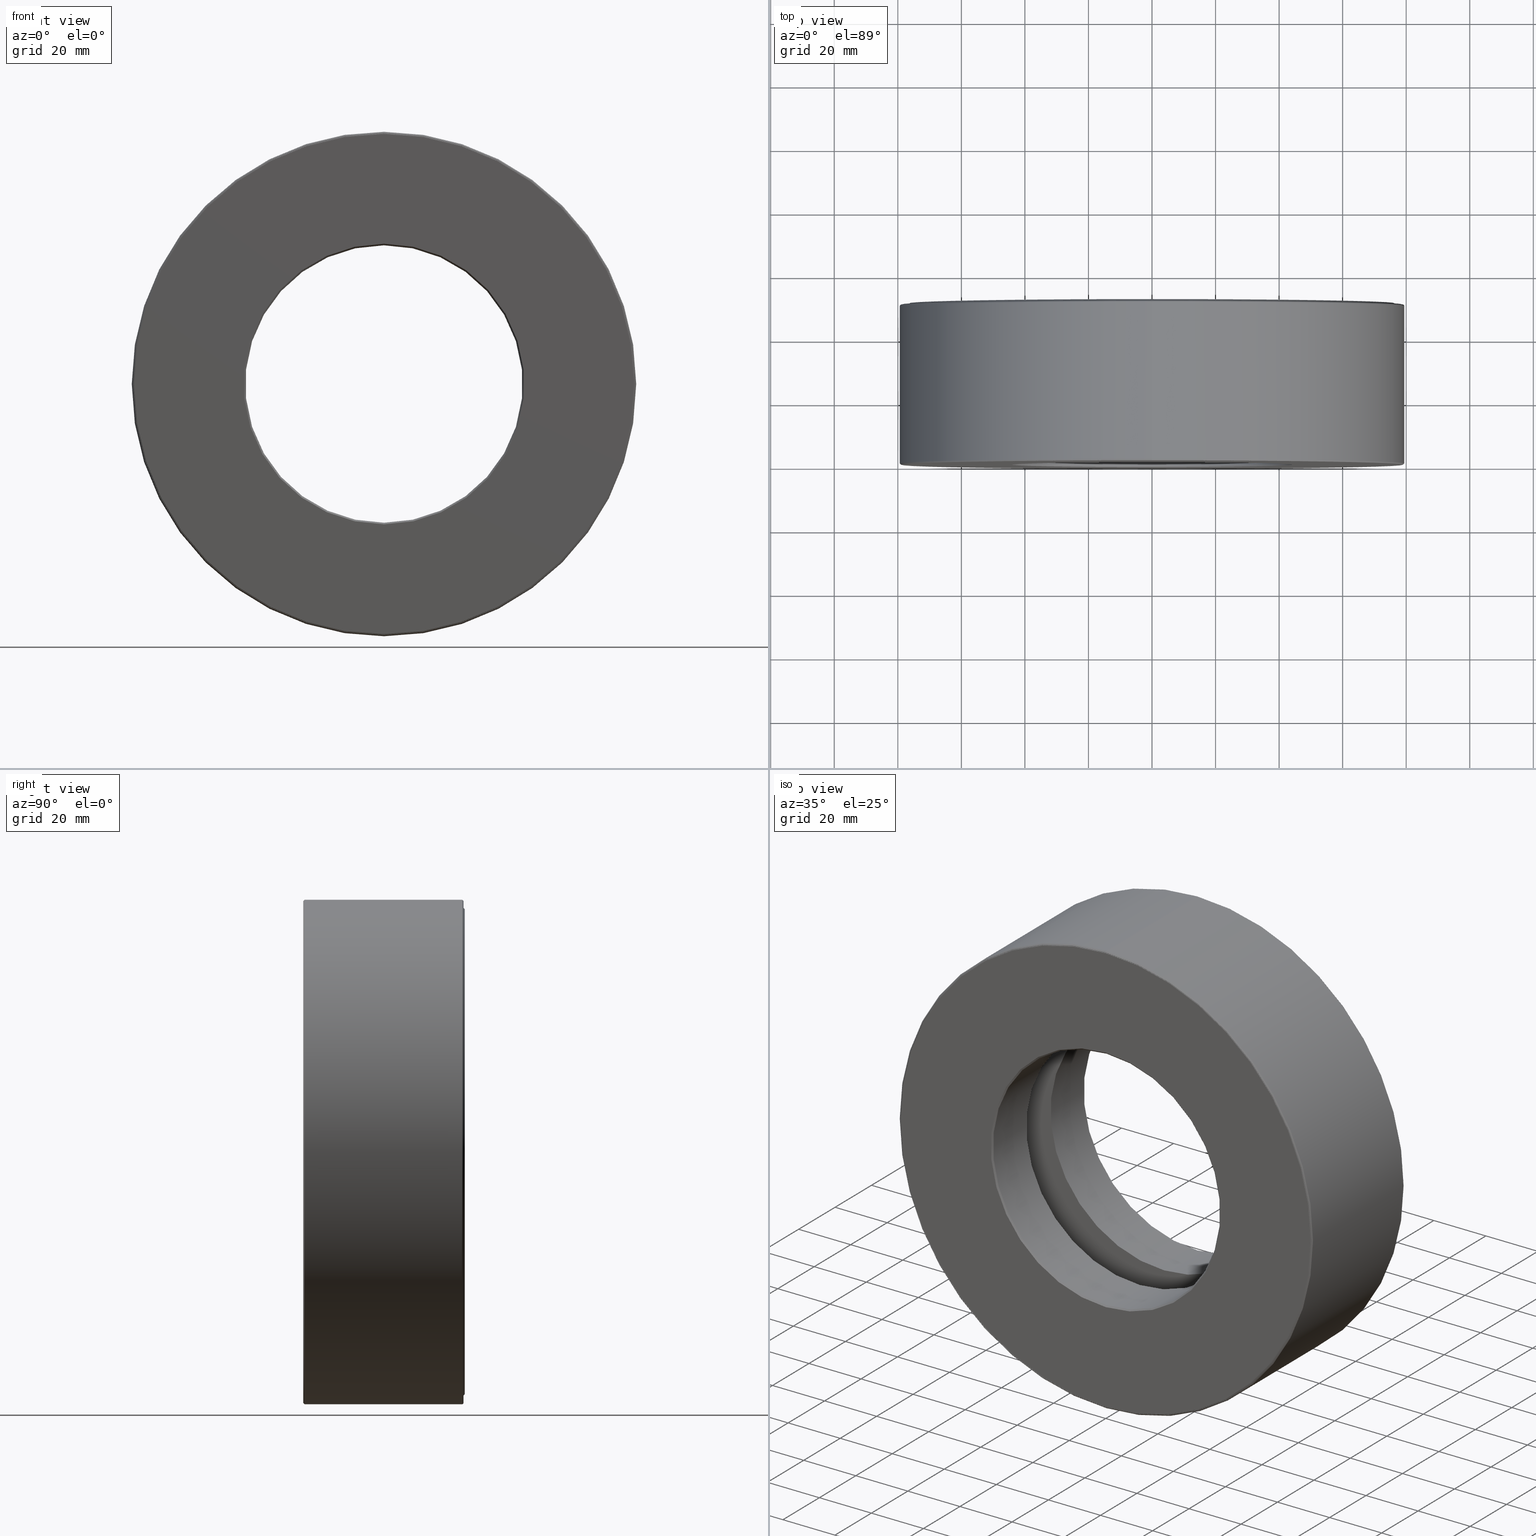
[diagram: canonical four-view strip — front | top / right | iso, engineering-drawing reading convention]
A machine part, canonical four-view strip (front | top / right | iso — engineering-drawing reading convention). The complete STEP part file that produces these views, byte-faithful:
ISO-10303-21;
HEADER;
FILE_DESCRIPTION (( 'STEP AP203' ),
    '1' );
FILE_NAME ('T-100-50.step',
    '2016-06-29T18:27:42',
    ( '' ),
    ( '' ),
    'SwSTEP 2.0',
    'SolidWorks 2016',
    '' );
FILE_SCHEMA (( 'CONFIG_CONTROL_DESIGN' ));
ENDSEC;

DATA;
#1 = CYLINDRICAL_SURFACE ( 'NONE', #120, 1.718750000000000400 ) ;
#2 = EDGE_LOOP ( 'NONE', ( #555 ) ) ;
#3 = CARTESIAN_POINT ( 'NONE',  ( 0.0000000000000000000, -2.433052119357234800E-016, 0.0000000000000000000 ) ) ;
#4 = ORIENTED_EDGE ( 'NONE', *, *, #123, .T. ) ;
#5 = DIRECTION ( 'NONE',  ( 0.0000000000000000000, -0.0000000000000000000, -1.000000000000000000 ) ) ;
#6 = DIRECTION ( 'NONE',  ( 0.0000000000000000000, 0.0000000000000000000, 1.000000000000000000 ) ) ;
#7 = ADVANCED_FACE ( 'NONE', ( #417, #169 ), #47, .F. ) ;
#8 = DIRECTION ( 'NONE',  ( 0.0000000000000000000, 0.0000000000000000000, 1.000000000000000000 ) ) ;
#9 = FACE_BOUND ( 'NONE', #160, .T. ) ;
#10 = AXIS2_PLACEMENT_3D ( 'NONE', #334, #478, #296 ) ;
#11 = ORIENTED_EDGE ( 'NONE', *, *, #471, .T. ) ;
#12 = COORDINATED_UNIVERSAL_TIME_OFFSET ( 5, 0, .BEHIND. ) ;
#13 = DIRECTION ( 'NONE',  ( -0.0000000000000000000, 1.000000000000000000, -0.0000000000000000000 ) ) ;
#14 = AXIS2_PLACEMENT_3D ( 'NONE', #451, #401, #165 ) ;
#15 = CIRCLE ( 'NONE', #35, 3.105000000000000900 ) ;
#16 = DIRECTION ( 'NONE',  ( -0.0000000000000000000, 1.000000000000000000, -0.0000000000000000000 ) ) ;
#17 = EDGE_LOOP ( 'NONE', ( #280 ) ) ;
#18 = ORIENTED_EDGE ( 'NONE', *, *, #423, .F. ) ;
#19 = COORDINATED_UNIVERSAL_TIME_OFFSET ( 5, 0, .BEHIND. ) ;
#20 = AXIS2_PLACEMENT_3D ( 'NONE', #86, #510, #230 ) ;
#21 = ADVANCED_FACE ( 'NONE', ( #279, #352 ), #223, .F. ) ;
#22 = DIRECTION ( 'NONE',  ( 0.0000000000000000000, 0.0000000000000000000, 1.000000000000000000 ) ) ;
#23 = CARTESIAN_POINT ( 'NONE',  ( 0.0000000000000000000, 1.262500000000000000, 3.008500000000000600 ) ) ;
#24 = ADVANCED_FACE ( 'NONE', ( #300, #329 ), #173, .F. ) ;
#25 = CARTESIAN_POINT ( 'NONE',  ( 0.0000000000000000000, 1.985000000000000300, 3.044999999999999900 ) ) ;
#26 = ADVANCED_FACE ( 'NONE', ( #218, #46 ), #94, .T. ) ;
#27 = FACE_OUTER_BOUND ( 'NONE', #227, .T. ) ;
#28 = ORIENTED_EDGE ( 'NONE', *, *, #600, .T. ) ;
#29 = CARTESIAN_POINT ( 'NONE',  ( 0.0000000000000000000, 1.979999999999999500, 1.718750000000000400 ) ) ;
#30 = APPROVAL_DATE_TIME ( #170, #156 ) ;
#31 = APPROVAL ( #178, 'UNSPECIFIED' ) ;
#32 = CARTESIAN_POINT ( 'NONE',  ( 0.0000000000000000000, 0.01499999999999997700, 3.125000000000000000 ) ) ;
#33 = ADVANCED_FACE ( 'NONE', ( #200, #259 ), #204, .F. ) ;
#34 = CARTESIAN_POINT ( 'NONE',  ( 0.0000000000000000000, 0.7374999999999999300, 3.105000000000000900 ) ) ;
#35 = AXIS2_PLACEMENT_3D ( 'NONE', #605, #283, #465 ) ;
#36 = CONICAL_SURFACE ( 'NONE', #44, 3.100000000000000100, 0.7853981633975455300 ) ;
#37 = ORIENTED_EDGE ( 'NONE', *, *, #535, .T. ) ;
#38 = EDGE_LOOP ( 'NONE', ( #98 ) ) ;
#39 = VERTEX_POINT ( 'NONE', #493 ) ;
#40 = DIRECTION ( 'NONE',  ( -0.0000000000000000000, 1.000000000000000000, -0.0000000000000000000 ) ) ;
#41 = ORIENTED_EDGE ( 'NONE', *, *, #207, .F. ) ;
#42 = DIRECTION ( 'NONE',  ( 1.000000000000000000, 0.0000000000000000000, 0.0000000000000000000 ) ) ;
#43 = VERTEX_POINT ( 'NONE', #586 ) ;
#44 = AXIS2_PLACEMENT_3D ( 'NONE', #332, #231, #239 ) ;
#45 = DIRECTION ( 'NONE',  ( -0.0000000000000000000, 1.000000000000000000, -0.0000000000000000000 ) ) ;
#46 = FACE_BOUND ( 'NONE', #476, .T. ) ;
#47 = PLANE ( 'NONE',  #214 ) ;
#48 = EDGE_LOOP ( 'NONE', ( #244 ) ) ;
#49 = DIRECTION ( 'NONE',  ( -0.0000000000000000000, 1.000000000000000000, -0.0000000000000000000 ) ) ;
#50 = FACE_OUTER_BOUND ( 'NONE', #107, .T. ) ;
#51 = DIRECTION ( 'NONE',  ( 0.0000000000000000000, -1.000000000000000000, 0.0000000000000000000 ) ) ;
#52 = DIRECTION ( 'NONE',  ( 0.0000000000000000000, 0.0000000000000000000, 1.000000000000000000 ) ) ;
#53 = EDGE_LOOP ( 'NONE', ( #441 ) ) ;
#54 = CARTESIAN_POINT ( 'NONE',  ( 0.0000000000000000000, 1.965000000000000500, 0.0000000000000000000 ) ) ;
#55 = ORIENTED_EDGE ( 'NONE', *, *, #241, .T. ) ;
#56 = CONICAL_SURFACE ( 'NONE', #80, 1.718750000000000400, 0.7853981633974415100 ) ;
#57 = CARTESIAN_POINT ( 'NONE',  ( 0.0000000000000000000, 2.000000000000000000, 0.0000000000000000000 ) ) ;
#58 = DIRECTION ( 'NONE',  ( -0.0000000000000000000, 1.000000000000000000, -0.0000000000000000000 ) ) ;
#59 = FACE_OUTER_BOUND ( 'NONE', #292, .T. ) ;
#60 = AXIS2_PLACEMENT_3D ( 'NONE', #236, #507, #184 ) ;
#61 = EDGE_LOOP ( 'NONE', ( #595 ) ) ;
#62 = PERSON ( 'UNSPECIFIED', 'UNSPECIFIED', 'UNSPECIFIED', ('UNSPECIFIED'), ('UNSPECIFIED'), ('UNSPECIFIED') ) ;
#63 = DIRECTION ( 'NONE',  ( 0.0000000000000000000, -1.000000000000000000, 0.0000000000000000000 ) ) ;
#64 = CARTESIAN_POINT ( 'NONE',  ( 0.0000000000000000000, 0.9999999999999998900, 0.0000000000000000000 ) ) ;
#65 = EDGE_CURVE ( 'NONE', #202, #202, #589, .T. ) ;
#66 = DIRECTION ( 'NONE',  ( 0.0000000000000000000, 0.0000000000000000000, 1.000000000000000000 ) ) ;
#67 = ORIENTED_EDGE ( 'NONE', *, *, #514, .F. ) ;
#68 = ORIENTED_EDGE ( 'NONE', *, *, #104, .F. ) ;
#69 = APPROVAL_DATE_TIME ( #84, #31 ) ;
#70 = DIRECTION ( 'NONE',  ( 0.0000000000000000000, 0.0000000000000000000, 1.000000000000000000 ) ) ;
#71 = DIRECTION ( 'NONE',  ( -0.0000000000000000000, 1.000000000000000000, 0.0000000000000000000 ) ) ;
#72 = CARTESIAN_POINT ( 'NONE',  ( 0.0000000000000000000, 2.000000000000000000, 0.0000000000000000000 ) ) ;
#73 = AXIS2_PLACEMENT_3D ( 'NONE', #150, #188, #569 ) ;
#74 = ADVANCED_FACE ( 'NONE', ( ), #457, .T. ) ;
#75 = CARTESIAN_POINT ( 'NONE',  ( 0.0000000000000000000, 1.965000000000000500, 3.125000000000000000 ) ) ;
#76 = CYLINDRICAL_SURFACE ( 'NONE', #92, 3.044999999999999900 ) ;
#77 = EDGE_LOOP ( 'NONE', ( #539 ) ) ;
#78 = VERTEX_POINT ( 'NONE', #405 ) ;
#79 = PERSON_AND_ORGANIZATION_ROLE ( 'design_owner' ) ;
#80 = AXIS2_PLACEMENT_3D ( 'NONE', #297, #255, #262 ) ;
#81 = SPHERICAL_SURFACE ( 'NONE', #20, 0.4374999999999998300 ) ;
#82 = EDGE_LOOP ( 'NONE', ( #41 ) ) ;
#83 = CLOSED_SHELL ( 'NONE', ( #171 ) ) ;
#84 = DATE_AND_TIME ( #565, #584 ) ;
#85 = AXIS2_PLACEMENT_3D ( 'NONE', #90, #372, #466 ) ;
#86 = CARTESIAN_POINT ( 'NONE',  ( -2.784630941794340900E-014, 0.9999999999999996700, -2.658500000000000100 ) ) ;
#87 = CARTESIAN_POINT ( 'NONE',  ( 0.0000000000000000000, 0.0000000000000000000, 0.0000000000000000000 ) ) ;
#88 = CIRCLE ( 'NONE', #85, 1.738750000000000500 ) ;
#89 = EDGE_LOOP ( 'NONE', ( #4 ) ) ;
#90 = CARTESIAN_POINT ( 'NONE',  ( 0.0000000000000000000, 2.000000000000000000, 0.0000000000000000000 ) ) ;
#91 = CIRCLE ( 'NONE', #469, 3.105000000000000900 ) ;
#92 = AXIS2_PLACEMENT_3D ( 'NONE', #556, #599, #138 ) ;
#93 = DIRECTION ( 'NONE',  ( -0.0000000000000000000, 1.000000000000000000, -0.0000000000000000000 ) ) ;
#94 = PLANE ( 'NONE',  #575 ) ;
#95 = DIRECTION ( 'NONE',  ( 6.982962677686264300E-015, -0.0000000000000000000, 1.000000000000000000 ) ) ;
#96 = CIRCLE ( 'NONE', #224, 3.008500000000000600 ) ;
#97 = EDGE_LOOP ( 'NONE', ( #177 ) ) ;
#98 = ORIENTED_EDGE ( 'NONE', *, *, #525, .T. ) ;
#99 = PERSON_AND_ORGANIZATION ( #62, #237 ) ;
#100 = CARTESIAN_POINT ( 'NONE',  ( 0.0000000000000000000, -2.433052119357234800E-016, 0.0000000000000000000 ) ) ;
#101 = CC_DESIGN_PERSON_AND_ORGANIZATION_ASSIGNMENT ( #566, #79, ( #577 ) ) ;
#102 = DIRECTION ( 'NONE',  ( 0.0000000000000000000, 0.0000000000000000000, 1.000000000000000000 ) ) ;
#103 = DIRECTION ( 'NONE',  ( 0.0000000000000000000, -1.000000000000000000, 0.0000000000000000000 ) ) ;
#104 = EDGE_CURVE ( 'NONE', #449, #449, #133, .T. ) ;
#105 = FACE_OUTER_BOUND ( 'NONE', #530, .T. ) ;
#106 = CARTESIAN_POINT ( 'NONE',  ( 0.0000000000000000000, 0.0000000000000000000, 0.0000000000000000000 ) ) ;
#107 = EDGE_LOOP ( 'NONE', ( #28 ) ) ;
#108 = PERSON_AND_ORGANIZATION ( #62, #237 ) ;
#109 = LOCAL_TIME ( 14, 27, 42.00000000000000000, #12 ) ;
#110 = DIRECTION ( 'NONE',  ( -0.0000000000000000000, 1.000000000000000000, -0.0000000000000000000 ) ) ;
#111 = CARTESIAN_POINT ( 'NONE',  ( 0.0000000000000000000, 1.985000000000000300, 0.0000000000000000000 ) ) ;
#112 = ADVANCED_FACE ( 'NONE', ( #529, #473 ), #336, .F. ) ;
#113 = CARTESIAN_POINT ( 'NONE',  ( 0.0000000000000000000, 1.262500000000000000, 0.0000000000000000000 ) ) ;
#114 = CIRCLE ( 'NONE', #285, 3.109999999999999900 ) ;
#115 = AXIS2_PLACEMENT_3D ( 'NONE', #312, #311, #70 ) ;
#116 = ORIENTED_EDGE ( 'NONE', *, *, #557, .F. ) ;
#117 = ORIENTED_EDGE ( 'NONE', *, *, #304, .F. ) ;
#118 = CARTESIAN_POINT ( 'NONE',  ( 0.0000000000000000000, 2.000000000000000000, 1.738750000000000500 ) ) ;
#119 = UNCERTAINTY_MEASURE_WITH_UNIT (LENGTH_MEASURE( 1.000000000000000100E-005 ), #408, 'distance_accuracy_value', 'NONE');
#120 = AXIS2_PLACEMENT_3D ( 'NONE', #87, #378, #424 ) ;
#121 = ADVANCED_FACE ( 'NONE', ( #409, #226 ), #36, .T. ) ;
#122 = PLANE ( 'NONE',  #14 ) ;
#123 = EDGE_CURVE ( 'NONE', #511, #511, #88, .T. ) ;
#124 = CARTESIAN_POINT ( 'NONE',  ( 0.0000000000000000000, 1.964999999999999900, 3.105000000000000400 ) ) ;
#125 = FACE_OUTER_BOUND ( 'NONE', #503, .T. ) ;
#126 = ORIENTED_EDGE ( 'NONE', *, *, #506, .T. ) ;
#127 =( GEOMETRIC_REPRESENTATION_CONTEXT ( 3 ) GLOBAL_UNCERTAINTY_ASSIGNED_CONTEXT ( ( #119 ) ) GLOBAL_UNIT_ASSIGNED_CONTEXT ( ( #408, #266, #269 ) ) REPRESENTATION_CONTEXT ( 'NONE', 'WORKASPACE' ) );
#128 = LENGTH_MEASURE_WITH_UNIT ( LENGTH_MEASURE( 0.02539999999999999900 ), #540 );
#129 = ADVANCED_FACE ( 'NONE', ( #284, #373 ), #1, .F. ) ;
#130 = CARTESIAN_POINT ( 'NONE',  ( 0.0000000000000000000, -2.438577071318078500E-016, 3.105000000000000900 ) ) ;
#131 = AXIS2_PLACEMENT_3D ( 'NONE', #327, #143, #102 ) ;
#132 = EDGE_CURVE ( 'NONE', #288, #288, #492, .T. ) ;
#133 = CIRCLE ( 'NONE', #278, 3.044999999999999900 ) ;
#134 = ORIENTED_EDGE ( 'NONE', *, *, #348, .F. ) ;
#135 = PERSON_AND_ORGANIZATION_ROLE ( 'design_supplier' ) ;
#136 = PERSON_AND_ORGANIZATION_ROLE ( 'creator' ) ;
#137 = DIRECTION ( 'NONE',  ( 0.0000000000000000000, 0.0000000000000000000, 1.000000000000000000 ) ) ;
#138 = DIRECTION ( 'NONE',  ( 0.0000000000000000000, 0.0000000000000000000, 1.000000000000000000 ) ) ;
#139 = FACE_OUTER_BOUND ( 'NONE', #235, .T. ) ;
#140 = ORIENTED_EDGE ( 'NONE', *, *, #275, .F. ) ;
#141 = APPROVAL_DATE_TIME ( #281, #306 ) ;
#142 = AXIS2_PLACEMENT_3D ( 'NONE', #242, #429, #560 ) ;
#143 = DIRECTION ( 'NONE',  ( -0.0000000000000000000, 1.000000000000000000, -0.0000000000000000000 ) ) ;
#144 = PLANE ( 'NONE',  #606 ) ;
#145 = CIRCLE ( 'NONE', #187, 1.738750000000000200 ) ;
#146 = CLOSED_SHELL ( 'NONE', ( #112, #452, #407, #153, #167, #580, #164, #537, #315, #33, #208, #121, #21, #270, #129, #7 ) ) ;
#147 = CARTESIAN_POINT ( 'NONE',  ( 0.0000000000000000000, 0.004999999999999412900, 0.0000000000000000000 ) ) ;
#148 = CARTESIAN_POINT ( 'NONE',  ( 0.0000000000000000000, 2.000000000000000000, 0.0000000000000000000 ) ) ;
#149 = AXIS2_PLACEMENT_3D ( 'NONE', #106, #197, #437 ) ;
#150 = CARTESIAN_POINT ( 'NONE',  ( 0.0000000000000000000, 0.0000000000000000000, 0.0000000000000000000 ) ) ;
#151 = PLANE ( 'NONE',  #320 ) ;
#152 = AXIS2_PLACEMENT_3D ( 'NONE', #291, #558, #249 ) ;
#153 = ADVANCED_FACE ( 'NONE', ( #252, #233 ), #144, .F. ) ;
#154 = EDGE_CURVE ( 'NONE', #574, #574, #15, .T. ) ;
#155 = ORIENTED_EDGE ( 'NONE', *, *, #65, .F. ) ;
#156 = APPROVAL ( #598, 'UNSPECIFIED' ) ;
#157 = CARTESIAN_POINT ( 'NONE',  ( 0.0000000000000000000, 0.7375000000000003800, 0.0000000000000000000 ) ) ;
#158 = CARTESIAN_POINT ( 'NONE',  ( -1.708128779421279200E-016, 0.7375000000000002700, 0.0000000000000000000 ) ) ;
#159 = SPHERICAL_SURFACE ( 'NONE', #464, 0.4374999999999998300 ) ;
#160 = EDGE_LOOP ( 'NONE', ( #447 ) ) ;
#161 = EDGE_LOOP ( 'NONE', ( #458 ) ) ;
#162 = FACE_OUTER_BOUND ( 'NONE', #82, .T. ) ;
#163 = CARTESIAN_POINT ( 'NONE',  ( 0.0000000000000000000, 1.912000000000000600, 0.0000000000000000000 ) ) ;
#164 = ADVANCED_FACE ( 'NONE', ( #105, #500 ), #209, .T. ) ;
#165 = DIRECTION ( 'NONE',  ( 0.0000000000000000000, -0.0000000000000000000, -1.000000000000000000 ) ) ;
#166 = CARTESIAN_POINT ( 'NONE',  ( 0.0000000000000000000, 1.964999999999999900, 3.044999999999999900 ) ) ;
#167 = ADVANCED_FACE ( 'NONE', ( #125, #570 ), #76, .F. ) ;
#168 = CC_DESIGN_SECURITY_CLASSIFICATION ( #182, ( #428 ) ) ;
#169 = FACE_OUTER_BOUND ( 'NONE', #38, .T. ) ;
#170 = DATE_AND_TIME ( #295, #109 ) ;
#171 = ADVANCED_FACE ( 'NONE', ( ), #159, .T. ) ;
#172 = AXIS2_PLACEMENT_3D ( 'NONE', #57, #51, #206 ) ;
#173 = CYLINDRICAL_SURFACE ( 'NONE', #491, 1.718750000000000400 ) ;
#174 = EDGE_LOOP ( 'NONE', ( #363 ) ) ;
#175 = VERTEX_POINT ( 'NONE', #25 ) ;
#176 = AXIS2_PLACEMENT_3D ( 'NONE', #416, #45, #553 ) ;
#177 = ORIENTED_EDGE ( 'NONE', *, *, #499, .T. ) ;
#178 = APPROVAL_STATUS ( 'not_yet_approved' ) ;
#179 = ORIENTED_EDGE ( 'NONE', *, *, #250, .F. ) ;
#180 = CARTESIAN_POINT ( 'NONE',  ( 9.282103139314469700E-015, 0.9999999999999996700, 2.658500000000000100 ) ) ;
#181 = APPROVAL_PERSON_ORGANIZATION ( #546, #156, #596 ) ;
#182 = SECURITY_CLASSIFICATION ( '', '', #414 ) ;
#183 = DIRECTION ( 'NONE',  ( 0.0000000000000000000, 0.0000000000000000000, 1.000000000000000000 ) ) ;
#184 = DIRECTION ( 'NONE',  ( 0.0000000000000000000, 0.0000000000000000000, 1.000000000000000000 ) ) ;
#185 = FACE_BOUND ( 'NONE', #97, .T. ) ;
#186 = EDGE_LOOP ( 'NONE', ( #509 ) ) ;
#187 = AXIS2_PLACEMENT_3D ( 'NONE', #579, #393, #399 ) ;
#188 = DIRECTION ( 'NONE',  ( -0.0000000000000000000, 1.000000000000000000, -0.0000000000000000000 ) ) ;
#189 = EDGE_LOOP ( 'NONE', ( #155 ) ) ;
#190 = CARTESIAN_POINT ( 'NONE',  ( 2.658500000000000100, 0.9999999999999996700, -1.856420627862893900E-014 ) ) ;
#191 = EDGE_LOOP ( 'NONE', ( #179 ) ) ;
#192 = LOCAL_TIME ( 14, 27, 42.00000000000000000, #19 ) ;
#193 = SHAPE_DEFINITION_REPRESENTATION ( #561, #582 ) ;
#194 = ADVANCED_FACE ( 'NONE', ( ), #81, .T. ) ;
#195 = CC_DESIGN_APPROVAL ( #31, ( #182 ) ) ;
#196 = CARTESIAN_POINT ( 'NONE',  ( 0.0000000000000000000, 0.0000000000000000000, 0.0000000000000000000 ) ) ;
#197 = DIRECTION ( 'NONE',  ( -0.0000000000000000000, 1.000000000000000000, -0.0000000000000000000 ) ) ;
#198 = AXIS2_PLACEMENT_3D ( 'NONE', #299, #63, #347 ) ;
#199 = DIRECTION ( 'NONE',  ( -0.0000000000000000000, 1.000000000000000000, -0.0000000000000000000 ) ) ;
#200 = FACE_OUTER_BOUND ( 'NONE', #323, .T. ) ;
#201 = EDGE_LOOP ( 'NONE', ( #11 ) ) ;
#202 = VERTEX_POINT ( 'NONE', #124 ) ;
#203 = DIRECTION ( 'NONE',  ( 0.0000000000000000000, 0.0000000000000000000, 1.000000000000000000 ) ) ;
#204 = PLANE ( 'NONE',  #481 ) ;
#205 = DESIGN_CONTEXT ( 'detailed design', #366, 'design' ) ;
#206 = DIRECTION ( 'NONE',  ( 0.0000000000000000000, 0.0000000000000000000, -1.000000000000000000 ) ) ;
#207 = EDGE_CURVE ( 'NONE', #590, #590, #389, .T. ) ;
#208 = ADVANCED_FACE ( 'NONE', ( #139, #601 ), #484, .F. ) ;
#209 = TOROIDAL_SURFACE ( 'NONE', #60, 3.105000000000000400, 0.01999999999999978500 ) ;
#210 = CARTESIAN_POINT ( 'NONE',  ( 0.0000000000000000000, 0.004999999999999412900, 3.105000000000000900 ) ) ;
#211 = EDGE_LOOP ( 'NONE', ( #486 ) ) ;
#212 = COORDINATED_UNIVERSAL_TIME_OFFSET ( 5, 0, .BEHIND. ) ;
#213 = MECHANICAL_CONTEXT ( 'NONE', #585, 'mechanical' ) ;
#214 = AXIS2_PLACEMENT_3D ( 'NONE', #158, #103, #532 ) ;
#215 = CARTESIAN_POINT ( 'NONE',  ( 0.0000000000000000000, 0.7374999999999999300, 3.008500000000000600 ) ) ;
#216 = DIRECTION ( 'NONE',  ( -0.0000000000000000000, 1.000000000000000000, -0.0000000000000000000 ) ) ;
#217 = CC_DESIGN_DATE_AND_TIME_ASSIGNMENT ( #229, #459, ( #182 ) ) ;
#218 = FACE_OUTER_BOUND ( 'NONE', #186, .T. ) ;
#219 = EDGE_LOOP ( 'NONE', ( #330 ) ) ;
#220 = DIRECTION ( 'NONE',  ( 0.0000000000000000000, 0.0000000000000000000, 1.000000000000000000 ) ) ;
#221 = CIRCLE ( 'NONE', #246, 3.009999999999999800 ) ;
#222 = MANIFOLD_SOLID_BREP ( 'Revolve2[1]', #146 ) ;
#223 = PLANE ( 'NONE',  #257 ) ;
#224 = AXIS2_PLACEMENT_3D ( 'NONE', #436, #93, #343 ) ;
#225 = APPLICATION_PROTOCOL_DEFINITION ( 'international standard', 'config_control_design', 1994, #366 ) ;
#226 = FACE_BOUND ( 'NONE', #386, .T. ) ;
#227 = EDGE_LOOP ( 'NONE', ( #260 ) ) ;
#228 = EDGE_LOOP ( 'NONE', ( #18 ) ) ;
#229 = DATE_AND_TIME ( #461, #293 ) ;
#230 = DIRECTION ( 'NONE',  ( 1.047444401652939700E-014, 0.0000000000000000000, 1.000000000000000000 ) ) ;
#231 = DIRECTION ( 'NONE',  ( -0.0000000000000000000, 1.000000000000000000, -0.0000000000000000000 ) ) ;
#232 = DIRECTION ( 'NONE',  ( 0.0000000000000000000, 0.0000000000000000000, 1.000000000000000000 ) ) ;
#233 = FACE_BOUND ( 'NONE', #519, .T. ) ;
#234 = AXIS2_PLACEMENT_3D ( 'NONE', #157, #110, #571 ) ;
#235 = EDGE_LOOP ( 'NONE', ( #518 ) ) ;
#236 = CARTESIAN_POINT ( 'NONE',  ( 0.0000000000000000000, 1.965000000000000500, 0.0000000000000000000 ) ) ;
#237 = ORGANIZATION ( 'UNSPECIFIED', 'UNSPECIFIED', '' ) ;
#238 = CARTESIAN_POINT ( 'NONE',  ( -6.487435601265028900E-032, -2.435814595337656400E-016, 0.0000000000000000000 ) ) ;
#239 = DIRECTION ( 'NONE',  ( 0.0000000000000000000, 0.0000000000000000000, 1.000000000000000000 ) ) ;
#240 = CARTESIAN_POINT ( 'NONE',  ( 0.0000000000000000000, 0.02000000000000060800, 0.0000000000000000000 ) ) ;
#241 = EDGE_CURVE ( 'NONE', #455, #455, #96, .T. ) ;
#242 = CARTESIAN_POINT ( 'NONE',  ( 0.0000000000000000000, 1.262500000000000000, 0.0000000000000000000 ) ) ;
#243 = FACE_BOUND ( 'NONE', #397, .T. ) ;
#244 = ORIENTED_EDGE ( 'NONE', *, *, #348, .T. ) ;
#245 = EDGE_LOOP ( 'NONE', ( #286 ) ) ;
#246 = AXIS2_PLACEMENT_3D ( 'NONE', #72, #360, #220 ) ;
#247 = FACE_BOUND ( 'NONE', #211, .T. ) ;
#248 = AXIS2_PLACEMENT_3D ( 'NONE', #180, #370, #375 ) ;
#249 = DIRECTION ( 'NONE',  ( 0.0000000000000000000, 0.0000000000000000000, 1.000000000000000000 ) ) ;
#250 = EDGE_CURVE ( 'NONE', #78, #78, #544, .T. ) ;
#251 = MANIFOLD_SOLID_BREP ( 'BALLS[3]', #563 ) ;
#252 = FACE_OUTER_BOUND ( 'NONE', #189, .T. ) ;
#253 = LOCAL_TIME ( 14, 27, 42.00000000000000000, #376 ) ;
#254 = PRODUCT_RELATED_PRODUCT_CATEGORY ( 'detail', '', ( #577 ) ) ;
#255 = DIRECTION ( 'NONE',  ( -0.0000000000000000000, 1.000000000000000000, -0.0000000000000000000 ) ) ;
#256 = DIRECTION ( 'NONE',  ( 0.0000000000000000000, 0.0000000000000000000, 1.000000000000000000 ) ) ;
#257 = AXIS2_PLACEMENT_3D ( 'NONE', #319, #71, #52 ) ;
#258 = DIRECTION ( 'NONE',  ( 0.0000000000000000000, 0.0000000000000000000, 1.000000000000000000 ) ) ;
#259 = FACE_BOUND ( 'NONE', #77, .T. ) ;
#260 = ORIENTED_EDGE ( 'NONE', *, *, #304, .T. ) ;
#261 = EDGE_LOOP ( 'NONE', ( #339 ) ) ;
#262 = DIRECTION ( 'NONE',  ( 0.0000000000000000000, 0.0000000000000000000, 1.000000000000000000 ) ) ;
#263 = CARTESIAN_POINT ( 'NONE',  ( 0.0000000000000000000, 0.7375000000000002700, 2.308499999999999600 ) ) ;
#264 = PRODUCT_DEFINITION ( 'UNKNOWN', '', #428, #205 ) ;
#265 = ADVANCED_FACE ( 'NONE', ( ), #554, .T. ) ;
#266 =( NAMED_UNIT ( * ) PLANE_ANGLE_UNIT ( ) SI_UNIT ( $, .RADIAN. ) );
#267 = FACE_OUTER_BOUND ( 'NONE', #219, .T. ) ;
#268 = FACE_OUTER_BOUND ( 'NONE', #274, .T. ) ;
#269 =( NAMED_UNIT ( * ) SI_UNIT ( $, .STERADIAN. ) SOLID_ANGLE_UNIT ( ) );
#270 = ADVANCED_FACE ( 'NONE', ( #439, #243 ), #344, .F. ) ;
#271 = AXIS2_PLACEMENT_3D ( 'NONE', #349, #16, #203 ) ;
#272 = CARTESIAN_POINT ( 'NONE',  ( 0.0000000000000000000, 0.0000000000000000000, 1.738750000000000200 ) ) ;
#273 = FACE_BOUND ( 'NONE', #564, .T. ) ;
#274 = EDGE_LOOP ( 'NONE', ( #432 ) ) ;
#275 = EDGE_CURVE ( 'NONE', #39, #39, #114, .T. ) ;
#276 = FACE_OUTER_BOUND ( 'NONE', #161, .T. ) ;
#277 = MANIFOLD_SOLID_BREP ( 'BALLS[2]', #355 ) ;
#278 = AXIS2_PLACEMENT_3D ( 'NONE', #420, #552, #505 ) ;
#279 = FACE_OUTER_BOUND ( 'NONE', #174, .T. ) ;
#280 = ORIENTED_EDGE ( 'NONE', *, *, #207, .T. ) ;
#281 = DATE_AND_TIME ( #603, #192 ) ;
#282 = VERTEX_POINT ( 'NONE', #32 ) ;
#283 = DIRECTION ( 'NONE',  ( -0.0000000000000000000, 1.000000000000000000, -0.0000000000000000000 ) ) ;
#284 = FACE_OUTER_BOUND ( 'NONE', #374, .T. ) ;
#285 = AXIS2_PLACEMENT_3D ( 'NONE', #100, #434, #287 ) ;
#286 = ORIENTED_EDGE ( 'NONE', *, *, #65, .T. ) ;
#287 = DIRECTION ( 'NONE',  ( 0.0000000000000000000, 0.0000000000000000000, 1.000000000000000000 ) ) ;
#288 = VERTEX_POINT ( 'NONE', #29 ) ;
#289 = CIRCLE ( 'NONE', #271, 3.008500000000000600 ) ;
#290 = DIRECTION ( 'NONE',  ( 0.0000000000000000000, -1.000000000000000000, 0.0000000000000000000 ) ) ;
#291 = CARTESIAN_POINT ( 'NONE',  ( 0.0000000000000000000, 1.262500000000000000, 0.0000000000000000000 ) ) ;
#292 = EDGE_LOOP ( 'NONE', ( #117 ) ) ;
#293 = LOCAL_TIME ( 14, 27, 42.00000000000000000, #212 ) ;
#294 = CC_DESIGN_PERSON_AND_ORGANIZATION_ASSIGNMENT ( #494, #136, ( #264 ) ) ;
#295 = CALENDAR_DATE ( 2016, 29, 6 ) ;
#296 = DIRECTION ( 'NONE',  ( 0.0000000000000000000, 0.0000000000000000000, 1.000000000000000000 ) ) ;
#297 = CARTESIAN_POINT ( 'NONE',  ( 0.0000000000000000000, 1.979999999999999500, 0.0000000000000000000 ) ) ;
#298 = AXIS2_PLACEMENT_3D ( 'NONE', #485, #58, #258 ) ;
#299 = CARTESIAN_POINT ( 'NONE',  ( 0.0000000000000000000, 0.7374999999999999300, 0.0000000000000000000 ) ) ;
#300 = FACE_OUTER_BOUND ( 'NONE', #53, .T. ) ;
#301 = EDGE_LOOP ( 'NONE', ( #474 ) ) ;
#302 = VERTEX_POINT ( 'NONE', #357 ) ;
#303 = PLANE ( 'NONE',  #198 ) ;
#304 = EDGE_CURVE ( 'NONE', #390, #390, #467, .T. ) ;
#305 = CARTESIAN_POINT ( 'NONE',  ( 0.0000000000000000000, -2.433052119357233400E-016, 0.0000000000000000000 ) ) ;
#306 = APPROVAL ( #415, 'UNSPECIFIED' ) ;
#307 = ADVANCED_FACE ( 'NONE', ( #27, #316 ), #508, .T. ) ;
#308 = APPLICATION_PROTOCOL_DEFINITION ( 'international standard', 'config_control_design', 1994, #585 ) ;
#309 = EDGE_LOOP ( 'NONE', ( #549 ) ) ;
#310 = EDGE_LOOP ( 'NONE', ( #454 ) ) ;
#311 = DIRECTION ( 'NONE',  ( -0.0000000000000000000, 1.000000000000000000, -0.0000000000000000000 ) ) ;
#312 = CARTESIAN_POINT ( 'NONE',  ( 0.0000000000000000000, 1.985000000000000300, 0.0000000000000000000 ) ) ;
#313 = AXIS2_PLACEMENT_3D ( 'NONE', #406, #66, #400 ) ;
#314 = CARTESIAN_POINT ( 'NONE',  ( 0.0000000000000000000, 0.01499999999999997700, 0.0000000000000000000 ) ) ;
#315 = ADVANCED_FACE ( 'NONE', ( #267, #9 ), #362, .T. ) ;
#316 = FACE_OUTER_BOUND ( 'NONE', #410, .T. ) ;
#317 = ORIENTED_EDGE ( 'NONE', *, *, #123, .F. ) ;
#318 = VERTEX_POINT ( 'NONE', #450 ) ;
#319 = CARTESIAN_POINT ( 'NONE',  ( -1.735438433665986200E-031, -1.216526059678617200E-016, 0.0000000000000000000 ) ) ;
#320 = AXIS2_PLACEMENT_3D ( 'NONE', #387, #475, #5 ) ;
#321 = PERSON_AND_ORGANIZATION_ROLE ( 'creator' ) ;
#322 = DATE_TIME_ROLE ( 'creation_date' ) ;
#323 = EDGE_LOOP ( 'NONE', ( #140 ) ) ;
#324 = COORDINATED_UNIVERSAL_TIME_OFFSET ( 5, 0, .BEHIND. ) ;
#325 = CIRCLE ( 'NONE', #328, 3.100000000000000100 ) ;
#326 = DIRECTION ( 'NONE',  ( 0.0000000000000000000, 0.0000000000000000000, -1.000000000000000000 ) ) ;
#327 = CARTESIAN_POINT ( 'NONE',  ( 0.0000000000000000000, 0.0000000000000000000, 0.0000000000000000000 ) ) ;
#328 = AXIS2_PLACEMENT_3D ( 'NONE', #305, #576, #353 ) ;
#329 = FACE_OUTER_BOUND ( 'NONE', #426, .T. ) ;
#330 = ORIENTED_EDGE ( 'NONE', *, *, #538, .F. ) ;
#331 = VERTEX_POINT ( 'NONE', #210 ) ;
#332 = CARTESIAN_POINT ( 'NONE',  ( 0.0000000000000000000, -2.433052119357233400E-016, 0.0000000000000000000 ) ) ;
#333 = CC_DESIGN_APPROVAL ( #156, ( #264 ) ) ;
#334 = CARTESIAN_POINT ( 'NONE',  ( 0.0000000000000000000, 1.262500000000000000, 0.0000000000000000000 ) ) ;
#335 = DIRECTION ( 'NONE',  ( -0.0000000000000000000, 1.000000000000000000, -0.0000000000000000000 ) ) ;
#336 = TOROIDAL_SURFACE ( 'NONE', #176, 2.658500000000000100, 0.4375000000000001700 ) ;
#337 = EDGE_LOOP ( 'NONE', ( #460 ) ) ;
#338 = DIRECTION ( 'NONE',  ( -0.0000000000000000000, 1.000000000000000000, -0.0000000000000000000 ) ) ;
#339 = ORIENTED_EDGE ( 'NONE', *, *, #525, .F. ) ;
#340 = DATE_AND_TIME ( #369, #253 ) ;
#341 = TOROIDAL_SURFACE ( 'NONE', #412, 2.658500000000000100, 0.4375000000000003900 ) ;
#342 = DIRECTION ( 'NONE',  ( 0.0000000000000000000, 0.0000000000000000000, 1.000000000000000000 ) ) ;
#343 = DIRECTION ( 'NONE',  ( 0.0000000000000000000, 0.0000000000000000000, 1.000000000000000000 ) ) ;
#344 = CONICAL_SURFACE ( 'NONE', #350, 1.718750000000000000, 0.7853981633974346200 ) ;
#345 = CC_DESIGN_DATE_AND_TIME_ASSIGNMENT ( #340, #322, ( #264 ) ) ;
#346 = FACE_BOUND ( 'NONE', #310, .T. ) ;
#347 = DIRECTION ( 'NONE',  ( 0.0000000000000000000, -0.0000000000000000000, -1.000000000000000000 ) ) ;
#348 = EDGE_CURVE ( 'NONE', #398, #398, #395, .T. ) ;
#349 = CARTESIAN_POINT ( 'NONE',  ( 0.0000000000000000000, 1.262500000000000000, 0.0000000000000000000 ) ) ;
#350 = AXIS2_PLACEMENT_3D ( 'NONE', #240, #290, #562 ) ;
#351 = DIRECTION ( 'NONE',  ( 0.0000000000000000000, -0.0000000000000000000, -1.000000000000000000 ) ) ;
#352 = FACE_BOUND ( 'NONE', #446, .T. ) ;
#353 = DIRECTION ( 'NONE',  ( 0.0000000000000000000, 0.0000000000000000000, 1.000000000000000000 ) ) ;
#354 = CLOSED_SHELL ( 'NONE', ( #361, #498, #483, #24, #531, #26, #445, #307 ) ) ;
#355 = CLOSED_SHELL ( 'NONE', ( #265 ) ) ;
#356 = PERSON_AND_ORGANIZATION ( #62, #237 ) ;
#357 = CARTESIAN_POINT ( 'NONE',  ( 0.0000000000000000000, -2.433052119357233400E-016, 3.100000000000000100 ) ) ;
#358 = DIRECTION ( 'NONE',  ( -0.0000000000000000000, 1.000000000000000000, -0.0000000000000000000 ) ) ;
#359 = CC_DESIGN_APPROVAL ( #306, ( #428 ) ) ;
#360 = DIRECTION ( 'NONE',  ( -0.0000000000000000000, 1.000000000000000000, -0.0000000000000000000 ) ) ;
#361 = ADVANCED_FACE ( 'NONE', ( #185, #59 ), #151, .T. ) ;
#362 = CONICAL_SURFACE ( 'NONE', #403, 3.109999999999999900, 0.7853981633974492800 ) ;
#363 = ORIENTED_EDGE ( 'NONE', *, *, #535, .F. ) ;
#364 = AXIS2_PLACEMENT_3D ( 'NONE', #515, #470, #232 ) ;
#365 = CIRCLE ( 'NONE', #234, 1.718750000000000400 ) ;
#366 = APPLICATION_CONTEXT ( 'configuration controlled 3d designs of mechanical parts and assemblies' ) ;
#367 = MANIFOLD_SOLID_BREP ( 'Revolve2[2]', #354 ) ;
#368 = EDGE_LOOP ( 'NONE', ( #597 ) ) ;
#369 = CALENDAR_DATE ( 2016, 29, 6 ) ;
#370 = DIRECTION ( 'NONE',  ( -1.000000000000000000, 0.0000000000000000000, 3.491481338843132200E-015 ) ) ;
#371 = AXIS2_PLACEMENT_3D ( 'NONE', #380, #40, #183 ) ;
#372 = DIRECTION ( 'NONE',  ( -0.0000000000000000000, 1.000000000000000000, -0.0000000000000000000 ) ) ;
#373 = FACE_OUTER_BOUND ( 'NONE', #201, .T. ) ;
#374 = EDGE_LOOP ( 'NONE', ( #67 ) ) ;
#375 = DIRECTION ( 'NONE',  ( -3.491481338843132200E-015, 0.0000000000000000000, -1.000000000000000000 ) ) ;
#376 = COORDINATED_UNIVERSAL_TIME_OFFSET ( 5, 0, .BEHIND. ) ;
#377 = CIRCLE ( 'NONE', #435, 1.718750000000000000 ) ;
#378 = DIRECTION ( 'NONE',  ( -0.0000000000000000000, 1.000000000000000000, -0.0000000000000000000 ) ) ;
#379 = EDGE_CURVE ( 'NONE', #331, #331, #479, .T. ) ;
#380 = CARTESIAN_POINT ( 'NONE',  ( 0.0000000000000000000, 1.964999999999999900, 0.0000000000000000000 ) ) ;
#381 = DIRECTION ( 'NONE',  ( 0.0000000000000000000, 0.0000000000000000000, 1.000000000000000000 ) ) ;
#382 = AXIS2_PLACEMENT_3D ( 'NONE', #147, #472, #521 ) ;
#383 = DIRECTION ( 'NONE',  ( -0.0000000000000000000, 1.000000000000000000, -0.0000000000000000000 ) ) ;
#384 = CYLINDRICAL_SURFACE ( 'NONE', #73, 3.105000000000000900 ) ;
#385 = ORIENTED_EDGE ( 'NONE', *, *, #600, .F. ) ;
#386 = EDGE_LOOP ( 'NONE', ( #37 ) ) ;
#387 = CARTESIAN_POINT ( 'NONE',  ( 0.0000000000000000000, 1.262500000000000000, 0.0000000000000000000 ) ) ;
#388 = CIRCLE ( 'NONE', #593, 3.044999999999999900 ) ;
#389 = CIRCLE ( 'NONE', #588, 3.125000000000000000 ) ;
#390 = VERTEX_POINT ( 'NONE', #490 ) ;
#391 = AXIS2_PLACEMENT_3D ( 'NONE', #314, #216, #488 ) ;
#392 = FACE_OUTER_BOUND ( 'NONE', #191, .T. ) ;
#393 = DIRECTION ( 'NONE',  ( -0.0000000000000000000, 1.000000000000000000, -0.0000000000000000000 ) ) ;
#394 = DIRECTION ( 'NONE',  ( 0.0000000000000000000, -1.000000000000000000, 0.0000000000000000000 ) ) ;
#395 = CIRCLE ( 'NONE', #152, 1.718750000000000400 ) ;
#396 = ORIENTED_EDGE ( 'NONE', *, *, #591, .F. ) ;
#397 = EDGE_LOOP ( 'NONE', ( #402 ) ) ;
#398 = VERTEX_POINT ( 'NONE', #543 ) ;
#399 = DIRECTION ( 'NONE',  ( 0.0000000000000000000, 0.0000000000000000000, 1.000000000000000000 ) ) ;
#400 = DIRECTION ( 'NONE',  ( 1.000000000000000000, 0.0000000000000000000, 0.0000000000000000000 ) ) ;
#401 = DIRECTION ( 'NONE',  ( 0.0000000000000000000, -1.000000000000000000, 0.0000000000000000000 ) ) ;
#402 = ORIENTED_EDGE ( 'NONE', *, *, #514, .T. ) ;
#403 = AXIS2_PLACEMENT_3D ( 'NONE', #3, #335, #342 ) ;
#404 = CIRCLE ( 'NONE', #115, 3.105000000000000400 ) ;
#405 = CARTESIAN_POINT ( 'NONE',  ( 0.0000000000000000000, 1.262500000000000000, 2.308499999999999600 ) ) ;
#406 = CARTESIAN_POINT ( 'NONE',  ( 0.0000000000000000000, 0.0000000000000000000, 0.0000000000000000000 ) ) ;
#407 = ADVANCED_FACE ( 'NONE', ( #453, #425 ), #384, .F. ) ;
#408 =( CONVERSION_BASED_UNIT ( 'INCH', #128 ) LENGTH_UNIT ( ) NAMED_UNIT ( #567 ) );
#409 = FACE_OUTER_BOUND ( 'NONE', #61, .T. ) ;
#410 = EDGE_LOOP ( 'NONE', ( #572 ) ) ;
#411 = CYLINDRICAL_SURFACE ( 'NONE', #149, 3.125000000000000000 ) ;
#412 = AXIS2_PLACEMENT_3D ( 'NONE', #64, #444, #440 ) ;
#413 = CONICAL_SURFACE ( 'NONE', #172, 3.009999999999999800, 0.7853981633974529400 ) ;
#414 = SECURITY_CLASSIFICATION_LEVEL ( 'unclassified' ) ;
#415 = APPROVAL_STATUS ( 'not_yet_approved' ) ;
#416 = CARTESIAN_POINT ( 'NONE',  ( 0.0000000000000000000, 0.9999999999999998900, 0.0000000000000000000 ) ) ;
#417 = FACE_BOUND ( 'NONE', #368, .T. ) ;
#418 = ORIENTED_EDGE ( 'NONE', *, *, #104, .T. ) ;
#419 = APPROVAL_PERSON_ORGANIZATION ( #573, #306, #547 ) ;
#420 = CARTESIAN_POINT ( 'NONE',  ( 0.0000000000000000000, 1.964999999999999900, 0.0000000000000000000 ) ) ;
#421 = DIRECTION ( 'NONE',  ( -0.0000000000000000000, 1.000000000000000000, 0.0000000000000000000 ) ) ;
#422 = MANIFOLD_SOLID_BREP ( 'BALLS[1]', #583 ) ;
#423 = EDGE_CURVE ( 'NONE', #520, #520, #145, .T. ) ;
#424 = DIRECTION ( 'NONE',  ( 0.0000000000000000000, 0.0000000000000000000, 1.000000000000000000 ) ) ;
#425 = FACE_OUTER_BOUND ( 'NONE', #245, .T. ) ;
#426 = EDGE_LOOP ( 'NONE', ( #134 ) ) ;
#427 = VERTEX_POINT ( 'NONE', #587 ) ;
#428 = PRODUCT_DEFINITION_FORMATION_WITH_SPECIFIED_SOURCE ( 'ANY', '', #577, .NOT_KNOWN. ) ;
#429 = DIRECTION ( 'NONE',  ( -0.0000000000000000000, 1.000000000000000000, -0.0000000000000000000 ) ) ;
#430 = DIRECTION ( 'NONE',  ( 0.0000000000000000000, 0.0000000000000000000, 1.000000000000000000 ) ) ;
#431 = EDGE_LOOP ( 'NONE', ( #55 ) ) ;
#432 = ORIENTED_EDGE ( 'NONE', *, *, #557, .T. ) ;
#433 = CIRCLE ( 'NONE', #391, 3.125000000000000000 ) ;
#434 = DIRECTION ( 'NONE',  ( -0.0000000000000000000, 1.000000000000000000, -0.0000000000000000000 ) ) ;
#435 = AXIS2_PLACEMENT_3D ( 'NONE', #526, #13, #256 ) ;
#436 = CARTESIAN_POINT ( 'NONE',  ( 0.0000000000000000000, 0.7374999999999999300, 0.0000000000000000000 ) ) ;
#437 = DIRECTION ( 'NONE',  ( 0.0000000000000000000, 0.0000000000000000000, 1.000000000000000000 ) ) ;
#438 = DIRECTION ( 'NONE',  ( -0.0000000000000000000, 1.000000000000000000, 0.0000000000000000000 ) ) ;
#439 = FACE_OUTER_BOUND ( 'NONE', #228, .T. ) ;
#440 = DIRECTION ( 'NONE',  ( 0.0000000000000000000, 0.0000000000000000000, 1.000000000000000000 ) ) ;
#441 = ORIENTED_EDGE ( 'NONE', *, *, #132, .T. ) ;
#442 = VERTEX_POINT ( 'NONE', #536 ) ;
#443 = AXIS2_PLACEMENT_3D ( 'NONE', #190, #95, #516 ) ;
#444 = DIRECTION ( 'NONE',  ( -0.0000000000000000000, 1.000000000000000000, -0.0000000000000000000 ) ) ;
#445 = ADVANCED_FACE ( 'NONE', ( #517, #273 ), #413, .T. ) ;
#446 = EDGE_LOOP ( 'NONE', ( #523 ) ) ;
#447 = ORIENTED_EDGE ( 'NONE', *, *, #275, .T. ) ;
#448 = CARTESIAN_POINT ( 'NONE',  ( 0.0000000000000000000, 0.02000000000000060800, 1.718750000000000000 ) ) ;
#449 = VERTEX_POINT ( 'NONE', #166 ) ;
#450 = CARTESIAN_POINT ( 'NONE',  ( 0.0000000000000000000, 1.912000000000000600, 3.098000000000000300 ) ) ;
#451 = CARTESIAN_POINT ( 'NONE',  ( 0.0000000000000000000, 1.985000000000000300, 0.0000000000000000000 ) ) ;
#452 = ADVANCED_FACE ( 'NONE', ( #247, #50 ), #303, .F. ) ;
#453 = FACE_OUTER_BOUND ( 'NONE', #545, .T. ) ;
#454 = ORIENTED_EDGE ( 'NONE', *, *, #528, .F. ) ;
#455 = VERTEX_POINT ( 'NONE', #215 ) ;
#456 = CIRCLE ( 'NONE', #559, 3.098000000000000300 ) ;
#457 = SPHERICAL_SURFACE ( 'NONE', #248, 0.4374999999999998300 ) ;
#458 = ORIENTED_EDGE ( 'NONE', *, *, #538, .T. ) ;
#459 = DATE_TIME_ROLE ( 'classification_date' ) ;
#460 = ORIENTED_EDGE ( 'NONE', *, *, #499, .F. ) ;
#461 = CALENDAR_DATE ( 2016, 29, 6 ) ;
#462 = PERSON_AND_ORGANIZATION_ROLE ( 'classification_officer' ) ;
#463 = CARTESIAN_POINT ( 'NONE',  ( -2.658500000000000100, 0.9999999999999996700, 0.0000000000000000000 ) ) ;
#464 = AXIS2_PLACEMENT_3D ( 'NONE', #463, #326, #42 ) ;
#465 = DIRECTION ( 'NONE',  ( 0.0000000000000000000, 0.0000000000000000000, 1.000000000000000000 ) ) ;
#466 = DIRECTION ( 'NONE',  ( 0.0000000000000000000, 0.0000000000000000000, 1.000000000000000000 ) ) ;
#467 = CIRCLE ( 'NONE', #10, 3.098000000000000300 ) ;
#468 = EDGE_LOOP ( 'NONE', ( #502 ) ) ;
#469 = AXIS2_PLACEMENT_3D ( 'NONE', #542, #358, #496 ) ;
#470 = DIRECTION ( 'NONE',  ( -0.0000000000000000000, 1.000000000000000000, -0.0000000000000000000 ) ) ;
#471 = EDGE_CURVE ( 'NONE', #43, #43, #365, .T. ) ;
#472 = DIRECTION ( 'NONE',  ( -0.0000000000000000000, 1.000000000000000000, -0.0000000000000000000 ) ) ;
#473 = FACE_OUTER_BOUND ( 'NONE', #431, .T. ) ;
#474 = ORIENTED_EDGE ( 'NONE', *, *, #132, .F. ) ;
#475 = DIRECTION ( 'NONE',  ( 0.0000000000000000000, -1.000000000000000000, 0.0000000000000000000 ) ) ;
#476 = EDGE_LOOP ( 'NONE', ( #317 ) ) ;
#477 = PERSON_AND_ORGANIZATION ( #62, #237 ) ;
#478 = DIRECTION ( 'NONE',  ( -0.0000000000000000000, 1.000000000000000000, -0.0000000000000000000 ) ) ;
#479 = CIRCLE ( 'NONE', #382, 3.105000000000000900 ) ;
#480 = VERTEX_POINT ( 'NONE', #263 ) ;
#481 = AXIS2_PLACEMENT_3D ( 'NONE', #238, #421, #6 ) ;
#482 = DIRECTION ( 'NONE',  ( -0.0000000000000000000, 1.000000000000000000, -0.0000000000000000000 ) ) ;
#483 = ADVANCED_FACE ( 'NONE', ( #541, #392 ), #527, .T. ) ;
#484 = CYLINDRICAL_SURFACE ( 'NONE', #131, 3.105000000000000900 ) ;
#485 = CARTESIAN_POINT ( 'NONE',  ( 0.0000000000000000000, 0.7375000000000002700, 0.0000000000000000000 ) ) ;
#486 = ORIENTED_EDGE ( 'NONE', *, *, #241, .F. ) ;
#487 = MANIFOLD_SOLID_BREP ( 'Revolve3', #83 ) ;
#488 = DIRECTION ( 'NONE',  ( 0.0000000000000000000, 0.0000000000000000000, 1.000000000000000000 ) ) ;
#489 = CC_DESIGN_PERSON_AND_ORGANIZATION_ASSIGNMENT ( #477, #462, ( #182 ) ) ;
#490 = CARTESIAN_POINT ( 'NONE',  ( 0.0000000000000000000, 1.262500000000000000, 3.098000000000000300 ) ) ;
#491 = AXIS2_PLACEMENT_3D ( 'NONE', #568, #49, #381 ) ;
#492 = CIRCLE ( 'NONE', #364, 1.718750000000000400 ) ;
#493 = CARTESIAN_POINT ( 'NONE',  ( 0.0000000000000000000, -2.433052119357234800E-016, 3.109999999999999900 ) ) ;
#494 = PERSON_AND_ORGANIZATION ( #62, #237 ) ;
#495 = FACE_OUTER_BOUND ( 'NONE', #337, .T. ) ;
#496 = DIRECTION ( 'NONE',  ( 0.0000000000000000000, 0.0000000000000000000, 1.000000000000000000 ) ) ;
#497 = CC_DESIGN_PERSON_AND_ORGANIZATION_ASSIGNMENT ( #108, #321, ( #428 ) ) ;
#498 = ADVANCED_FACE ( 'NONE', ( #522, #495 ), #341, .F. ) ;
#499 = EDGE_CURVE ( 'NONE', #604, #604, #289, .T. ) ;
#500 = FACE_OUTER_BOUND ( 'NONE', #17, .T. ) ;
#501 = AXIS2_PLACEMENT_3D ( 'NONE', #196, #338, #8 ) ;
#502 = ORIENTED_EDGE ( 'NONE', *, *, #250, .T. ) ;
#503 = EDGE_LOOP ( 'NONE', ( #68 ) ) ;
#504 = APPROVAL_PERSON_ORGANIZATION ( #99, #31, #592 ) ;
#505 = DIRECTION ( 'NONE',  ( 0.0000000000000000000, 0.0000000000000000000, 1.000000000000000000 ) ) ;
#506 = EDGE_CURVE ( 'NONE', #318, #318, #456, .T. ) ;
#507 = DIRECTION ( 'NONE',  ( -0.0000000000000000000, 1.000000000000000000, -0.0000000000000000000 ) ) ;
#508 = CYLINDRICAL_SURFACE ( 'NONE', #501, 3.098000000000000300 ) ;
#509 = ORIENTED_EDGE ( 'NONE', *, *, #591, .T. ) ;
#510 = DIRECTION ( 'NONE',  ( 1.000000000000000000, 0.0000000000000000000, -1.047444401652939500E-014 ) ) ;
#511 = VERTEX_POINT ( 'NONE', #118 ) ;
#512 = CARTESIAN_POINT ( 'NONE',  ( 0.0000000000000000000, 1.964999999999999900, 0.0000000000000000000 ) ) ;
#513 = DIRECTION ( 'NONE',  ( 0.0000000000000000000, 0.0000000000000000000, 1.000000000000000000 ) ) ;
#514 = EDGE_CURVE ( 'NONE', #524, #524, #377, .T. ) ;
#515 = CARTESIAN_POINT ( 'NONE',  ( 0.0000000000000000000, 1.979999999999999500, 0.0000000000000000000 ) ) ;
#516 = DIRECTION ( 'NONE',  ( -1.000000000000000000, 0.0000000000000000000, 6.982962677686264300E-015 ) ) ;
#517 = FACE_OUTER_BOUND ( 'NONE', #602, .T. ) ;
#518 = ORIENTED_EDGE ( 'NONE', *, *, #154, .F. ) ;
#519 = EDGE_LOOP ( 'NONE', ( #418 ) ) ;
#520 = VERTEX_POINT ( 'NONE', #272 ) ;
#521 = DIRECTION ( 'NONE',  ( 0.0000000000000000000, 0.0000000000000000000, 1.000000000000000000 ) ) ;
#522 = FACE_OUTER_BOUND ( 'NONE', #468, .T. ) ;
#523 = ORIENTED_EDGE ( 'NONE', *, *, #423, .T. ) ;
#524 = VERTEX_POINT ( 'NONE', #448 ) ;
#525 = EDGE_CURVE ( 'NONE', #480, #480, #581, .T. ) ;
#526 = CARTESIAN_POINT ( 'NONE',  ( 0.0000000000000000000, 0.02000000000000060800, 0.0000000000000000000 ) ) ;
#527 = PLANE ( 'NONE',  #534 ) ;
#528 = EDGE_CURVE ( 'NONE', #175, #175, #388, .T. ) ;
#529 = FACE_OUTER_BOUND ( 'NONE', #261, .T. ) ;
#530 = EDGE_LOOP ( 'NONE', ( #116 ) ) ;
#531 = ADVANCED_FACE ( 'NONE', ( #594, #533 ), #56, .F. ) ;
#532 = DIRECTION ( 'NONE',  ( 0.0000000000000000000, -0.0000000000000000000, -1.000000000000000000 ) ) ;
#533 = FACE_BOUND ( 'NONE', #301, .T. ) ;
#534 = AXIS2_PLACEMENT_3D ( 'NONE', #113, #394, #351 ) ;
#535 = EDGE_CURVE ( 'NONE', #302, #302, #325, .T. ) ;
#536 = CARTESIAN_POINT ( 'NONE',  ( 0.0000000000000000000, 2.000000000000000000, 3.009999999999999800 ) ) ;
#537 = ADVANCED_FACE ( 'NONE', ( #162, #276 ), #411, .T. ) ;
#538 = EDGE_CURVE ( 'NONE', #282, #282, #433, .T. ) ;
#539 = ORIENTED_EDGE ( 'NONE', *, *, #154, .T. ) ;
#540 =( LENGTH_UNIT ( ) NAMED_UNIT ( * ) SI_UNIT ( $, .METRE. ) );
#541 = FACE_BOUND ( 'NONE', #48, .T. ) ;
#542 = CARTESIAN_POINT ( 'NONE',  ( 0.0000000000000000000, 0.7374999999999999300, 0.0000000000000000000 ) ) ;
#543 = CARTESIAN_POINT ( 'NONE',  ( 0.0000000000000000000, 1.262500000000000000, 1.718750000000000400 ) ) ;
#544 = CIRCLE ( 'NONE', #142, 2.308499999999999600 ) ;
#545 = EDGE_LOOP ( 'NONE', ( #385 ) ) ;
#546 = PERSON_AND_ORGANIZATION ( #62, #237 ) ;
#547 = APPROVAL_ROLE ( '' ) ;
#548 = CC_DESIGN_PERSON_AND_ORGANIZATION_ASSIGNMENT ( #356, #135, ( #428 ) ) ;
#549 = ORIENTED_EDGE ( 'NONE', *, *, #528, .T. ) ;
#550 = VERTEX_POINT ( 'NONE', #34 ) ;
#551 = DIRECTION ( 'NONE',  ( -0.0000000000000000000, 1.000000000000000000, 0.0000000000000000000 ) ) ;
#552 = DIRECTION ( 'NONE',  ( -0.0000000000000000000, 1.000000000000000000, -0.0000000000000000000 ) ) ;
#553 = DIRECTION ( 'NONE',  ( 0.0000000000000000000, 0.0000000000000000000, 1.000000000000000000 ) ) ;
#554 = SPHERICAL_SURFACE ( 'NONE', #443, 0.4374999999999998300 ) ;
#555 = ORIENTED_EDGE ( 'NONE', *, *, #379, .T. ) ;
#556 = CARTESIAN_POINT ( 'NONE',  ( 0.0000000000000000000, 0.0000000000000000000, 0.0000000000000000000 ) ) ;
#557 = EDGE_CURVE ( 'NONE', #427, #427, #404, .T. ) ;
#558 = DIRECTION ( 'NONE',  ( -0.0000000000000000000, 1.000000000000000000, -0.0000000000000000000 ) ) ;
#559 = AXIS2_PLACEMENT_3D ( 'NONE', #163, #482, #22 ) ;
#560 = DIRECTION ( 'NONE',  ( 0.0000000000000000000, 0.0000000000000000000, 1.000000000000000000 ) ) ;
#561 = PRODUCT_DEFINITION_SHAPE ( 'NONE', 'NONE',  #264 ) ;
#562 = DIRECTION ( 'NONE',  ( 0.0000000000000000000, 0.0000000000000000000, -1.000000000000000000 ) ) ;
#563 = CLOSED_SHELL ( 'NONE', ( #194 ) ) ;
#564 = EDGE_LOOP ( 'NONE', ( #396 ) ) ;
#565 = CALENDAR_DATE ( 2016, 29, 6 ) ;
#566 = PERSON_AND_ORGANIZATION ( #62, #237 ) ;
#567 = DIMENSIONAL_EXPONENTS ( 1.000000000000000000, 0.0000000000000000000, 0.0000000000000000000, 0.0000000000000000000, 0.0000000000000000000, 0.0000000000000000000, 0.0000000000000000000 ) ;
#568 = CARTESIAN_POINT ( 'NONE',  ( 0.0000000000000000000, 0.0000000000000000000, 0.0000000000000000000 ) ) ;
#569 = DIRECTION ( 'NONE',  ( 0.0000000000000000000, 0.0000000000000000000, 1.000000000000000000 ) ) ;
#570 = FACE_OUTER_BOUND ( 'NONE', #309, .T. ) ;
#571 = DIRECTION ( 'NONE',  ( 0.0000000000000000000, 0.0000000000000000000, 1.000000000000000000 ) ) ;
#572 = ORIENTED_EDGE ( 'NONE', *, *, #506, .F. ) ;
#573 = PERSON_AND_ORGANIZATION ( #62, #237 ) ;
#574 = VERTEX_POINT ( 'NONE', #130 ) ;
#575 = AXIS2_PLACEMENT_3D ( 'NONE', #148, #438, #513 ) ;
#576 = DIRECTION ( 'NONE',  ( -0.0000000000000000000, 1.000000000000000000, -0.0000000000000000000 ) ) ;
#577 = PRODUCT ( 'T-100-50', 'T-100-50', '', ( #213 ) ) ;
#578 = DIRECTION ( 'NONE',  ( 0.0000000000000000000, 0.0000000000000000000, 1.000000000000000000 ) ) ;
#579 = CARTESIAN_POINT ( 'NONE',  ( 0.0000000000000000000, 0.0000000000000000000, 0.0000000000000000000 ) ) ;
#580 = ADVANCED_FACE ( 'NONE', ( #346, #268 ), #122, .F. ) ;
#581 = CIRCLE ( 'NONE', #298, 2.308499999999999600 ) ;
#582 = ADVANCED_BREP_SHAPE_REPRESENTATION ( 'T-100-50', ( #222, #367, #487, #422, #277, #251, #313 ), #127 ) ;
#583 = CLOSED_SHELL ( 'NONE', ( #74 ) ) ;
#584 = LOCAL_TIME ( 14, 27, 42.00000000000000000, #324 ) ;
#585 = APPLICATION_CONTEXT ( 'configuration controlled 3d designs of mechanical parts and assemblies' ) ;
#586 = CARTESIAN_POINT ( 'NONE',  ( 0.0000000000000000000, 0.7375000000000003800, 1.718750000000000400 ) ) ;
#587 = CARTESIAN_POINT ( 'NONE',  ( 0.0000000000000000000, 1.985000000000000300, 3.105000000000000400 ) ) ;
#588 = AXIS2_PLACEMENT_3D ( 'NONE', #54, #383, #430 ) ;
#589 = CIRCLE ( 'NONE', #371, 3.105000000000000400 ) ;
#590 = VERTEX_POINT ( 'NONE', #75 ) ;
#591 = EDGE_CURVE ( 'NONE', #442, #442, #221, .T. ) ;
#592 = APPROVAL_ROLE ( '' ) ;
#593 = AXIS2_PLACEMENT_3D ( 'NONE', #111, #199, #578 ) ;
#594 = FACE_OUTER_BOUND ( 'NONE', #89, .T. ) ;
#595 = ORIENTED_EDGE ( 'NONE', *, *, #379, .F. ) ;
#596 = APPROVAL_ROLE ( '' ) ;
#597 = ORIENTED_EDGE ( 'NONE', *, *, #471, .F. ) ;
#598 = APPROVAL_STATUS ( 'not_yet_approved' ) ;
#599 = DIRECTION ( 'NONE',  ( -0.0000000000000000000, 1.000000000000000000, -0.0000000000000000000 ) ) ;
#600 = EDGE_CURVE ( 'NONE', #550, #550, #91, .T. ) ;
#601 = FACE_OUTER_BOUND ( 'NONE', #2, .T. ) ;
#602 = EDGE_LOOP ( 'NONE', ( #126 ) ) ;
#603 = CALENDAR_DATE ( 2016, 29, 6 ) ;
#604 = VERTEX_POINT ( 'NONE', #23 ) ;
#605 = CARTESIAN_POINT ( 'NONE',  ( 0.0000000000000000000, -2.438577071318078500E-016, 0.0000000000000000000 ) ) ;
#606 = AXIS2_PLACEMENT_3D ( 'NONE', #512, #551, #137 ) ;
ENDSEC;
END-ISO-10303-21;
